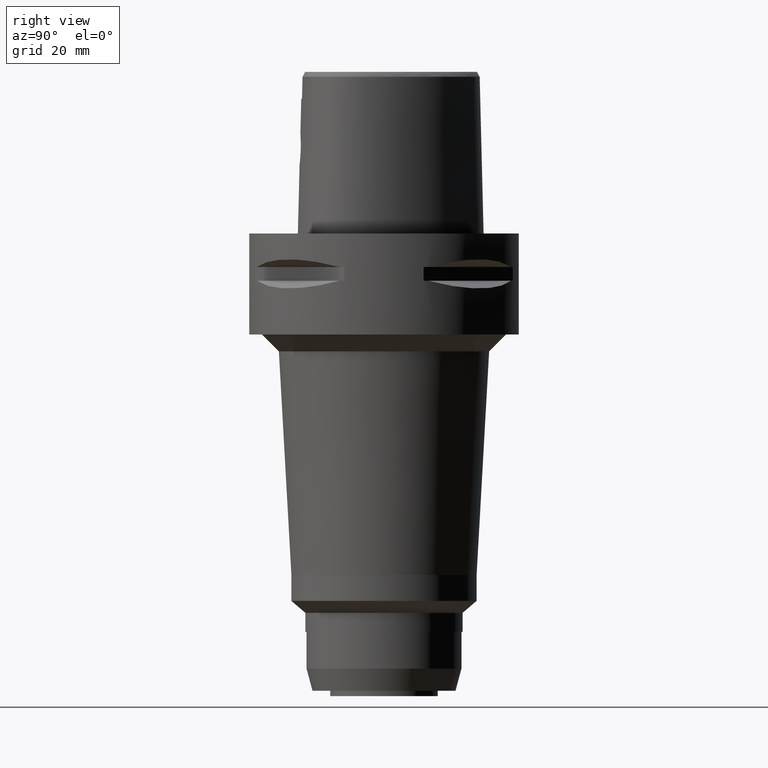
[diagram: clean part render]
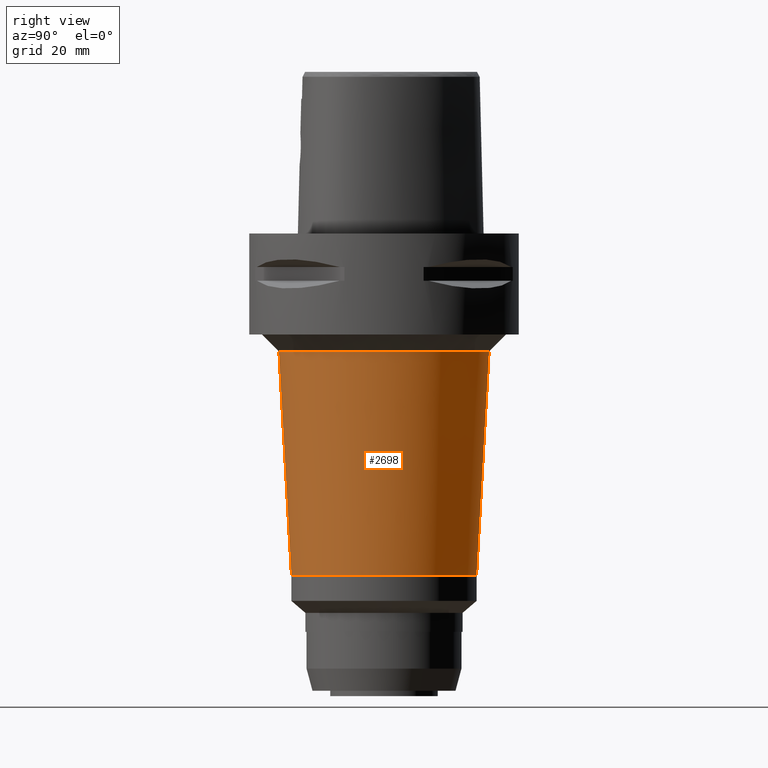
[diagram: same view with one face highlighted and labeled with its STEP entity id]
A machine part, right view. The second image highlights one B-rep face of the part: STEP entity #2698.
In plain terms, the highlighted conical surface has half-angle 3.206 deg.
Its self-contained STEP definition (entity closure, byte-faithful):
#596=DIRECTION('',(0.E0,-5.593477414536E-2,-9.984344250081E-1));
#597=VECTOR('',#596,6.650411718272E1);
#598=CARTESIAN_POINT('',(0.E0,3.121989277435E1,-3.5E1));
#599=LINE('',#598,#597);
#603=CARTESIAN_POINT('',(0.E0,0.E0,-1.014E2));
#604=DIRECTION('',(0.E0,0.E0,-1.E0));
#605=DIRECTION('',(0.E0,1.E0,0.E0));
#606=AXIS2_PLACEMENT_3D('',#603,#604,#605);
#611=CARTESIAN_POINT('',(0.E0,0.E0,-3.5E1));
#612=DIRECTION('',(0.E0,0.E0,1.E0));
#613=DIRECTION('',(0.E0,-1.E0,0.E0));
#614=AXIS2_PLACEMENT_3D('',#611,#612,#613);
#619=DIRECTION('',(0.E0,5.593477414536E-2,-9.984344250081E-1));
#620=VECTOR('',#619,6.650411718272E1);
#621=CARTESIAN_POINT('',(0.E0,-3.121989277435E1,-3.5E1));
#622=LINE('',#621,#620);
#1690=CARTESIAN_POINT('',(0.E0,3.121989277435E1,-3.5E1));
#1691=VERTEX_POINT('',#1690);
#1692=CARTESIAN_POINT('',(0.E0,-3.121989277435E1,-3.5E1));
#1693=VERTEX_POINT('',#1692);
#1694=CARTESIAN_POINT('',(0.E0,2.75E1,-1.014E2));
#1695=VERTEX_POINT('',#1694);
#1696=CARTESIAN_POINT('',(0.E0,-2.75E1,-1.014E2));
#1697=VERTEX_POINT('',#1696);
#2684=CARTESIAN_POINT('',(0.E0,0.E0,-6.82E1));
#2685=DIRECTION('',(0.E0,0.E0,1.E0));
#2686=DIRECTION('',(0.E0,1.E0,0.E0));
#2687=AXIS2_PLACEMENT_3D('',#2684,#2685,#2686);
#2688=CONICAL_SURFACE('',#2687,2.935994638718E1,3.2065E0);
#2690=ORIENTED_EDGE('',*,*,#2689,.T.);
#2692=ORIENTED_EDGE('',*,*,#2691,.T.);
#2694=ORIENTED_EDGE('',*,*,#2693,.F.);
#2695=ORIENTED_EDGE('',*,*,#2677,.T.);
#2696=EDGE_LOOP('',(#2690,#2692,#2694,#2695));
#2697=FACE_OUTER_BOUND('',#2696,.F.);
#607=CIRCLE('',#606,2.75E1);
#615=CIRCLE('',#614,3.121989277436E1);
#2677=EDGE_CURVE('',#1693,#1691,#615,.T.);
#2689=EDGE_CURVE('',#1691,#1695,#599,.T.);
#2691=EDGE_CURVE('',#1695,#1697,#607,.T.);
#2693=EDGE_CURVE('',#1693,#1697,#622,.T.);
#2698=ADVANCED_FACE('',(#2697),#2688,.T.);